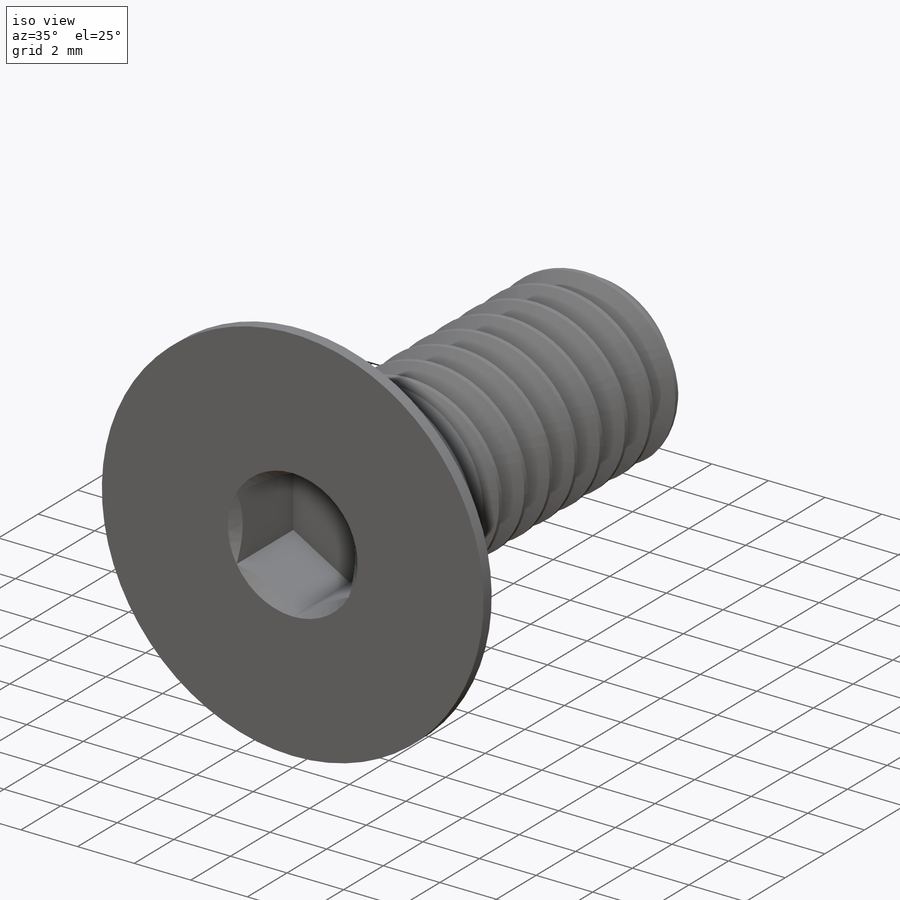
[diagram: iso view]
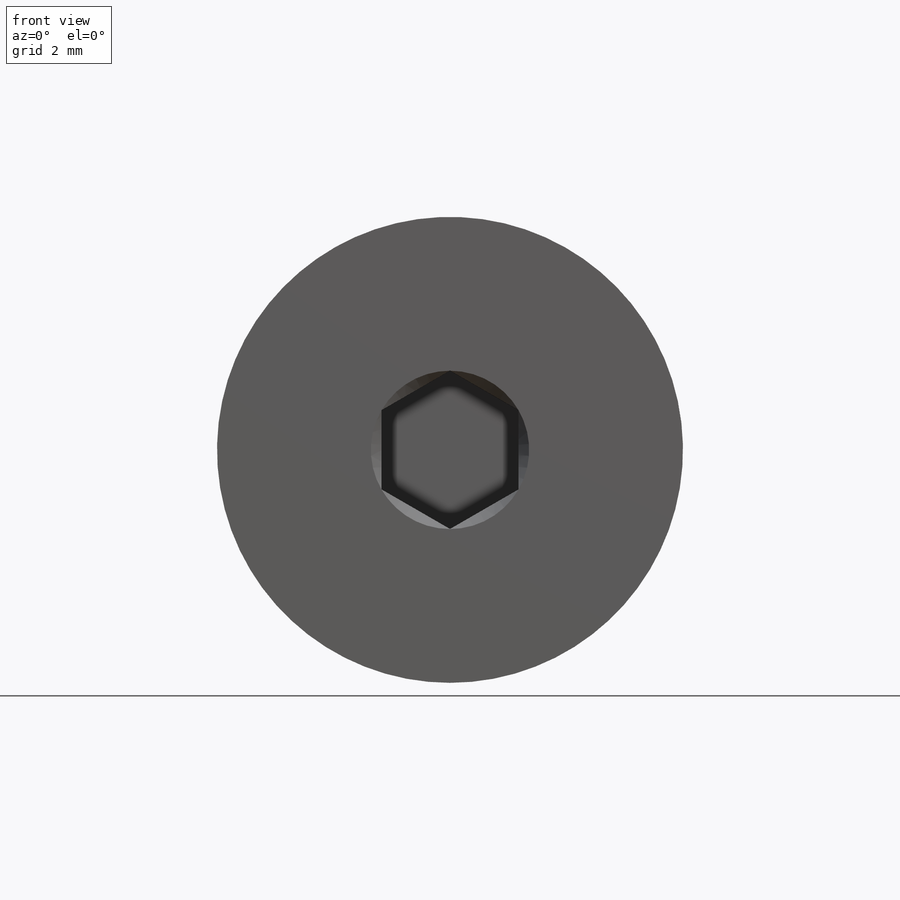
[diagram: front view]
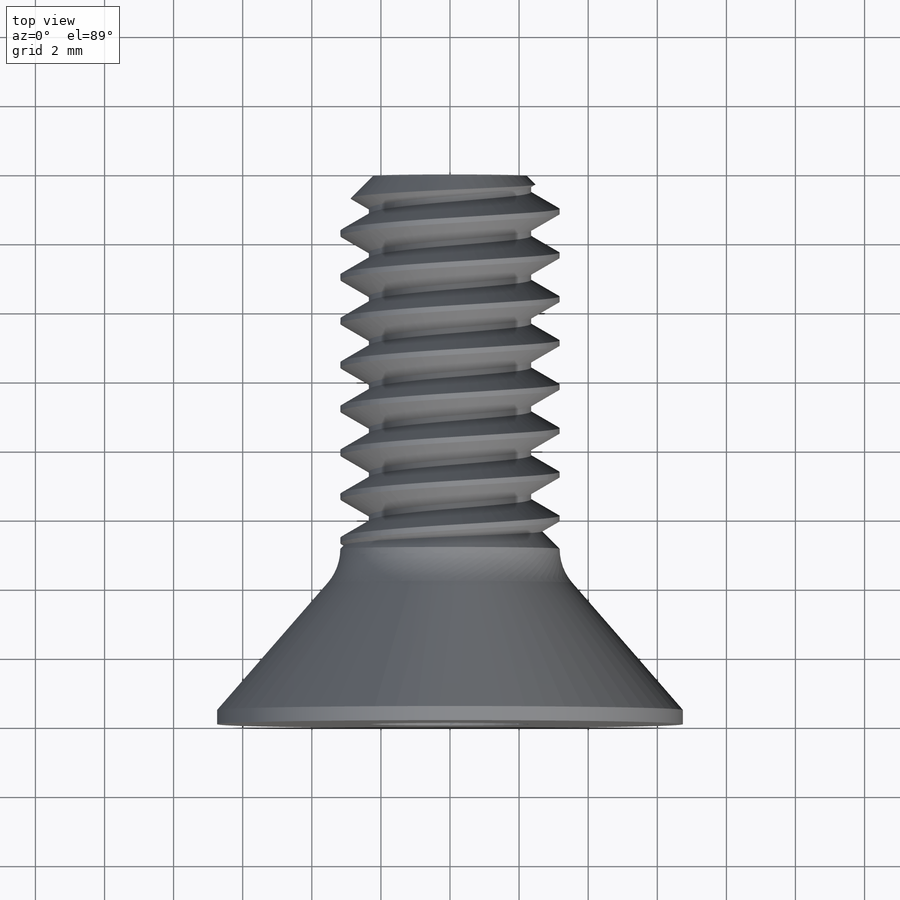
[diagram: top view]
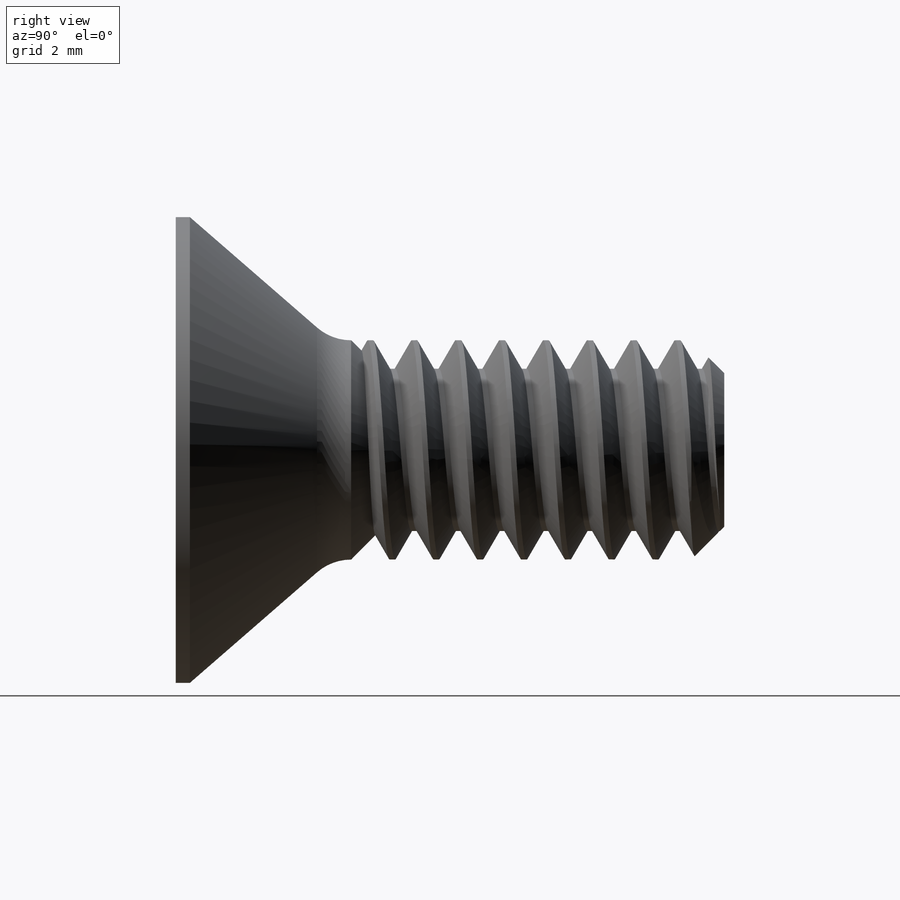
[diagram: right view]
SOLIDWORKS PART (.sldprt)
format: sldprt  version: not decoded by parser v0  size: 660,992 bytes
history: native  units: mm
features: sketch x10, cut_extrude x3, revolve x2, extrude x2, material x1, helix x1, chamfer x1, sweep x1, plane x1, boolean_combine x1 + 1 further entry (+17 scaffold rows collapsed; 2 parser-record rows omitted)
feature tree (43):
  scaffold x17  (default folders/planes/origin — collapsed)
  material  "Material <not specified>"
  "Design Table"
  sketch  "Sketch1"  dims[c1.Head Ht=6.35mm c1.Head Dia=13.4874mm c1.Dia=6.35mm c1.Lg=25.4mm c1.D1=~2.593207mm c1.Head Angle=82.0deg c1.D2=~1.814114mm c1.D3=~4.370808mm c2.Head Ht=4.0894mm c2.Lg=15.875mm c2.D1=~0.40894mm c2.D2=~2.34061mm c2.Head Angle=82.0deg]
  revolve  "Revolve1"  Angle=360deg
  sketch  "Sketch3"
  helix  "Helix/Spiral1"  Pitch=15.875mm
  sketch  "Sketch2"  dims[c1.D1=~1.485125mm c2.D1=60.0deg c2.D2=~0.15875mm c2.D3=0.635mm]
  chamfer  "Chamfer1"  Distance=0.9525mm Angle=45deg
  sweep  "Cut-Sweep1"
  sketch  "Sketch7"
  revolve  "Revolve2"  Angle=360deg
  plane  "Plane1"
  sketch  "Sketch8"
  extrude  "Boss-Extrude1"  [1 undecoded]
  parser-record x2  (decoder bookkeeping rows leaked as tree rows — omitted from the tree; the rows remain in map.json)
  sketch  "Sketch11"  dims[D1=2.54mm]
  cut_extrude  "Cut-Extrude4"  [1 undecoded]
  boolean_combine  "Combine1"
  sketch  "Sketch5"  dims[Hex=~3.96875mm]
  cut_extrude  "Cut-Extrude2"  Depth=2.86258mm
  sketch  "Sketch6"
  cut_extrude  "Cut-Extrude3"  Depth=2.86258mm
  sketch  "Sketch9"  dims[D1=0.0mm]
  extrude  "Boss-Extrude2"  Depth=44.45mm Min Thread=44.45mm
  sketch  "Sketch10"  dims[D1=1.905mm]
decode coverage: 13 of 21 modeling features carry decoded parameters; 1 rows unclassified (native names shown)
note: ~ marks probable driven/reference dimensions
note: 2 parameter values undecoded
note: suppression state not decoded; provenance and decode notes live in map.json
